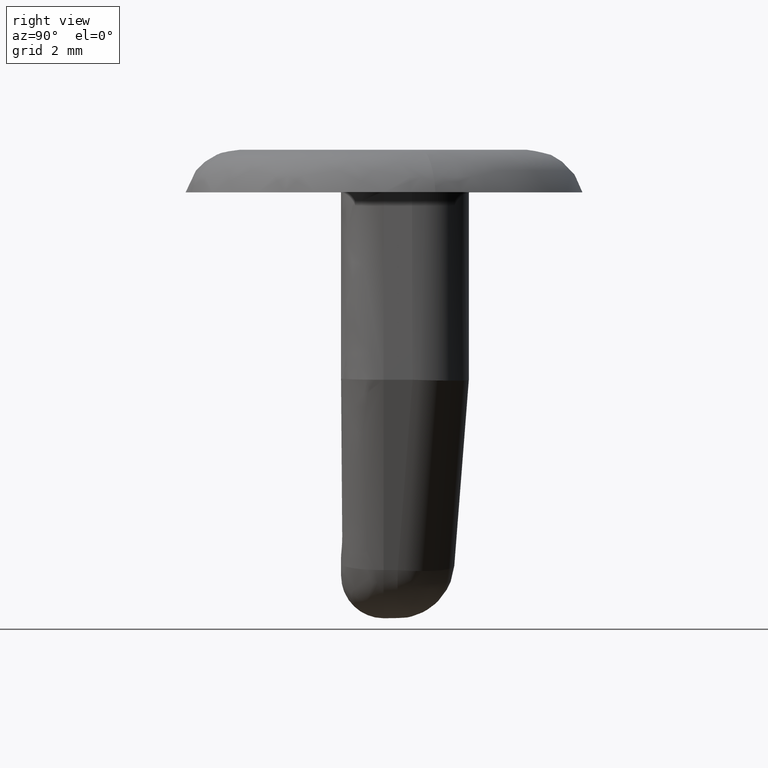
[diagram: clean part render]
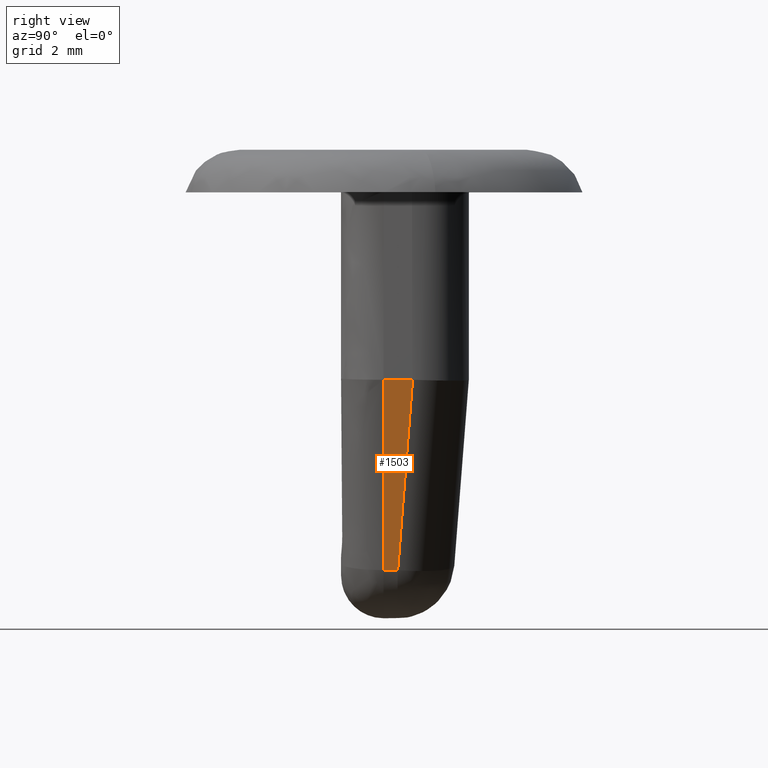
[diagram: same view with one face highlighted and labeled with its STEP entity id]
A machine part, right view. The second image highlights one B-rep face of the part: STEP entity #1503.
In plain terms, the highlighted face is a freeform B-spline surface patch.
Its self-contained STEP definition (entity closure, byte-faithful):
#386=CARTESIAN_POINT('',(1.977103092631000,0.0,-13.301767064321020));
#387=VERTEX_POINT('',#386);
#1097=CARTESIAN_POINT('',(1.977102512806405,0.493905729721868,-13.301766975822019));
#1098=VERTEX_POINT('',#1097);
#1147=CARTESIAN_POINT('',(2.999950953612275,1.017458232583580,-6.600301133317520));
#1148=VERTEX_POINT('',#1147);
#1177=CARTESIAN_POINT('',(1.977102512806405,0.493905729721868,-13.301766975822019));
#1178=CARTESIAN_POINT('',(2.999950953612275,1.017458232583580,-6.600301133317520));
#1179=QUASI_UNIFORM_CURVE('',1,(#1177,#1178),.UNSPECIFIED.,.F.,.U.);
#1180=EDGE_CURVE('',#1098,#1148,#1179,.T.);
#1205=CARTESIAN_POINT('',(2.999998905688410,1.0,-6.599986962614341));
#1206=VERTEX_POINT('',#1205);
#1214=CARTESIAN_POINT('',(2.999950953612276,1.017458232583580,-6.600301133317529));
#1215=CARTESIAN_POINT('',(2.999998905572649,1.008729303655269,-6.599986963372795));
#1216=CARTESIAN_POINT('',(2.999998905688410,1.0,-6.599986962614341));
#1224=(BOUNDED_CURVE()B_SPLINE_CURVE(2,(#1214,#1215,#1216),.UNSPECIFIED.,.F.,.U.)CURVE()GEOMETRIC_REPRESENTATION_ITEM()QUASI_UNIFORM_CURVE()RATIONAL_B_SPLINE_CURVE((1.0,0.999990475140412,1.0))REPRESENTATION_ITEM(''));
#1225=EDGE_CURVE('',#1148,#1206,#1224,.T.);
#1282=CARTESIAN_POINT('',(2.999998905688410,0.0,-6.599986962614341));
#1283=VERTEX_POINT('',#1282);
#1438=CARTESIAN_POINT('',(2.999998905688410,1.0,-6.599986962614341));
#1439=CARTESIAN_POINT('',(2.999998905688410,0.0,-6.599986962614341));
#1440=QUASI_UNIFORM_CURVE('',1,(#1438,#1439),.UNSPECIFIED.,.F.,.U.);
#1441=EDGE_CURVE('',#1206,#1283,#1440,.T.);
#1483=CARTESIAN_POINT('',(3.051092597890293,-0.050822033110443,-6.265233131276004));
#1484=CARTESIAN_POINT('',(1.926008204198264,-0.050822033110443,-13.636520958335680));
#1485=CARTESIAN_POINT('',(3.051092597890293,1.068280220210095,-6.265233131276004));
#1486=CARTESIAN_POINT('',(1.926008204198264,1.068280220210095,-13.636520958335680));
#1487=B_SPLINE_SURFACE_WITH_KNOTS('',1,1,((#1483,#1485),(#1484,#1486)),.UNSPECIFIED.,.F.,.F.,.U.,(2,2),(2,2),(0.0,7.456654687075669),(0.041708337925747,0.958291624821350),.UNSPECIFIED.);
#1488=CARTESIAN_POINT('',(1.977102512806405,0.493905729721868,-13.301766975822019));
#1489=CARTESIAN_POINT('',(1.977103092631000,0.0,-13.301767064321020));
#1490=QUASI_UNIFORM_CURVE('',1,(#1488,#1489),.UNSPECIFIED.,.F.,.U.);
#1491=EDGE_CURVE('',#1098,#387,#1490,.T.);
#1492=ORIENTED_EDGE('',*,*,#1491,.F.);
#1493=ORIENTED_EDGE('',*,*,#1180,.T.);
#1494=ORIENTED_EDGE('',*,*,#1225,.T.);
#1495=ORIENTED_EDGE('',*,*,#1441,.T.);
#1496=CARTESIAN_POINT('',(2.999998905688410,0.0,-6.599986962614341));
#1497=CARTESIAN_POINT('',(1.977103092631000,0.0,-13.301767064321020));
#1498=QUASI_UNIFORM_CURVE('',1,(#1496,#1497),.UNSPECIFIED.,.F.,.U.);
#1499=EDGE_CURVE('',#1283,#387,#1498,.T.);
#1500=ORIENTED_EDGE('',*,*,#1499,.T.);
#1501=EDGE_LOOP('',(#1492,#1493,#1494,#1495,#1500));
#1502=FACE_OUTER_BOUND('',#1501,.T.);
#1503=ADVANCED_FACE('',(#1502),#1487,.T.);